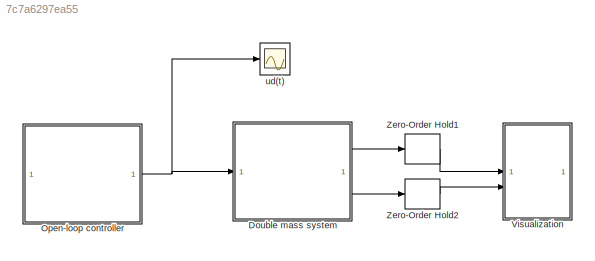
MODEL slx_7c7a6297ea55
KIND model
CONFIG AbsTol = auto
CONFIG EnableMultiTasking = off
CONFIG FixedStep = 0.01
CONFIG MaxStep = auto
CONFIG MinStep = auto
CONFIG RelTol = 1e-3
CONFIG SampleTimeConstraint = Unconstrained
CONFIG SolverName = ode3
CONFIG StartTime = 0.0
CONFIG StopTime = H
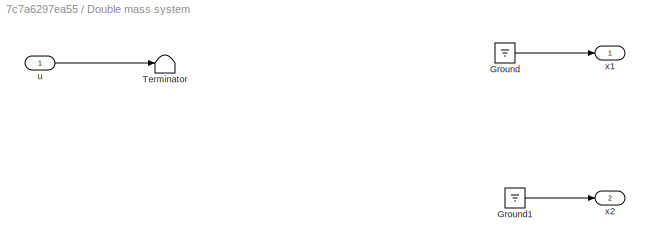
BLOCK [SubSystem] Double mass system
BLOCK [Ground] Double mass system/Ground
BLOCK [Ground] Double mass system/Ground1
BLOCK [Terminator] Double mass system/Terminator
BLOCK [Inport] Double mass system/u
BLOCK [Outport] Double mass system/x1
BLOCK [Outport] Double mass system/x2
  Port = 2
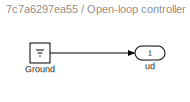
BLOCK [SubSystem] Open-loop controller
BLOCK [Ground] Open-loop controller/Ground
BLOCK [Outport] Open-loop controller/ud
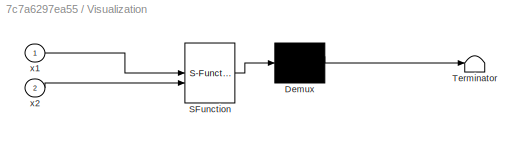
BLOCK [SubSystem] Visualization
  ErrorFcn = Stateflow.Translate.translate
  PermitHierarchicalResolution = ExplicitOnly
  SFBlockType = MATLAB Function
  TreatAsAtomicUnit = on
BLOCK [Demux] Visualization/ Demux 
  Outputs = 1
BLOCK [S-Function] Visualization/ SFunction 
  EnableBusSupport = on
  FunctionName = sf_sfun
  PortCounts = [2 1]
  SFcnIsStateOwnerBlock = off
  SFunctionDeploymentMode = off
  Tag = Stateflow S-Function 4
BLOCK [Terminator] Visualization/ Terminator 
BLOCK [Inport] Visualization/x1
BLOCK [Inport] Visualization/x2
  Port = 2
BLOCK [ZeroOrderHold] Zero-Order Hold1
  SampleTime = 0.2
BLOCK [ZeroOrderHold] Zero-Order Hold2
  SampleTime = 0.2
BLOCK [Scope] ud(t)
  Floating = off
  NumInputPorts = 1
  ScopeSpecificationString = Simulink.scopes.TimeScopeBlockCfg('CurrentConfiguration', extmgr.ConfigurationSet(extmgr.Configuration('Core','General UI',true),extmgr.Configuration('Core','Source UI',true),extmgr.Configuration('Sources','WiredSimulink',true,'DataLoggingVariableName','ScopeData2'),extmgr.Configuration('Visuals','Time Domain',true,'SerializedDisplays',{struct('MinYLimReal','-1.00000','MaxYLimReal','1.00000','YLab...<+1470ch>
LINE Double mass system/Ground1:1 -> Double mass system/x2:1
LINE Double mass system/Ground:1 -> Double mass system/x1:1
LINE Double mass system/u:1 -> Double mass system/Terminator:1
LINE Double mass system:1 -> Zero-Order Hold1:1
LINE Double mass system:2 -> Zero-Order Hold2:1
LINE Open-loop controller/Ground:1 -> Open-loop controller/ud:1
NET Open-loop controller:1 -> Double mass system:1, ud(t):1
LINE Zero-Order Hold1:1 -> Visualization:1
LINE Zero-Order Hold2:1 -> Visualization:2
note: NET lines group one-source signal fan-out (src -> all destinations, sorted); 1:1 wires keep LINE
CHART Visualization states=1 transitions=1
  STATE_LABEL 'eML_blk_kernel()'
  STATE_LABEL 'SCRIPT:\nfunction fcn(x1,x2)\n\n\nso = 12; % spring offset\n% mass 1\n    Xmass1 = [ 5 ; 5 ; -5 ; -5 ; 5 ] + x1 - so;\n    Ymass1 = [ -5 ; 5 ; 5 ; -5 ; -5]; \n\n% mass 2\n    Xmass2 = [ 5 ; 5 ; -5 ; -5 ; 5 ] + x2 + so;\n    Ymass2 = [ -5 ; 5 ; 5 ; -5 ; -5]; \n\n% the spring\n    Xspring = [ 0 ; 4 ; 6 ; 10 ; 14 ; 18 ; 20 ; 24 ]/24*(x2-x1+2*so-10) + (x1-so+5);\n    Yspring = [ 0 ; 0 ; 3 ; -3 ; 3 ; -3 ; 0 ; 0 ];\n\n%...<+613ch>'
CHART  states=0 transitions=0
